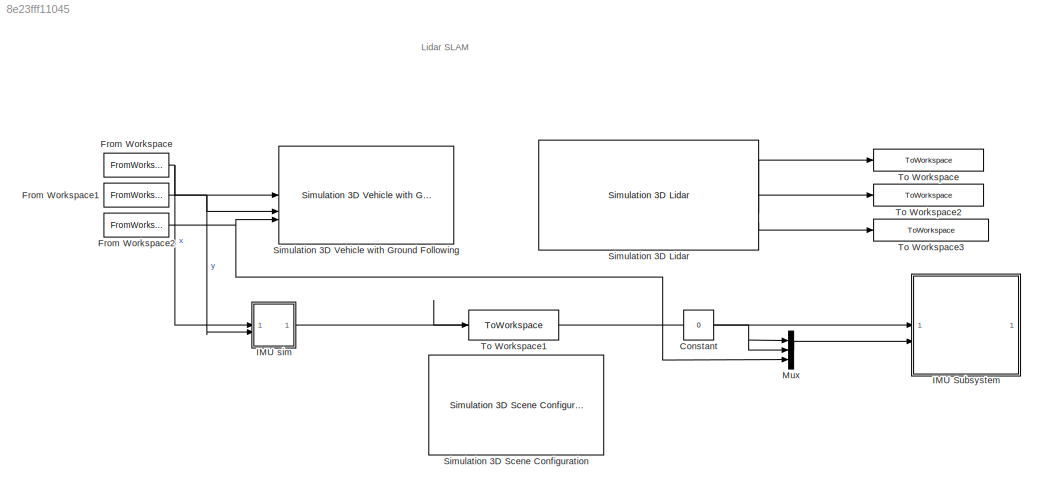
MODEL slx_8e23fff11045
KIND model
CONFIG AbsTol = auto
CONFIG EnableMultiTasking = off
CONFIG FixedStep = auto
CONFIG MaxStep = auto
CONFIG MinStep = auto
CONFIG RelTol = 1e-3
CONFIG SampleTimeConstraint = Unconstrained
CONFIG SolverName = VariableStepAuto
CONFIG StartTime = 0.0
CONFIG StopTime = 30
WORKSPACE source: mxarray member
WORKSPACE IMUloc = [0 0 0]
BLOCK [Constant] Constant
  Value = 0
BLOCK [FromWorkspace] From Workspace
  VariableName = refPosesX
BLOCK [FromWorkspace] From Workspace1
  VariableName = refPosesY
BLOCK [FromWorkspace] From Workspace2
  Interpolate = off
  OutputAfterFinalValue = Holding final value
  VariableName = refPosesT
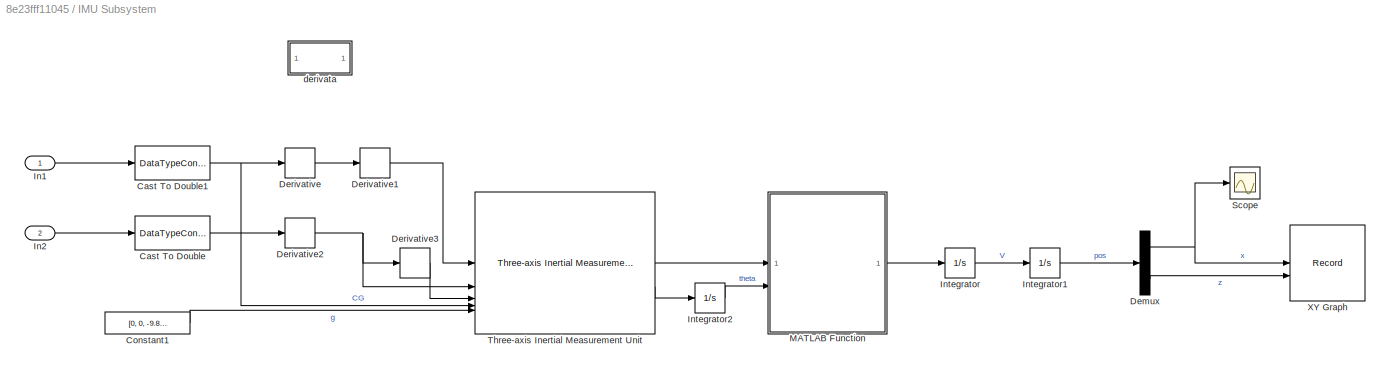
BLOCK [SubSystem] IMU Subsystem
  Commented = on
BLOCK [DataTypeConversion] IMU Subsystem/Cast To Double
  OutDataTypeStr = double
  RndMeth = Floor
  SaturateOnIntegerOverflow = off
BLOCK [DataTypeConversion] IMU Subsystem/Cast To Double1
  OutDataTypeStr = double
  RndMeth = Floor
  SaturateOnIntegerOverflow = off
BLOCK [Constant] IMU Subsystem/Constant1
  Value = [0, 0, -9.81]
BLOCK [Demux] IMU Subsystem/Demux
  Outputs = 3
BLOCK [Derivative] IMU Subsystem/Derivative
BLOCK [Derivative] IMU Subsystem/Derivative1
BLOCK [Derivative] IMU Subsystem/Derivative2
BLOCK [Derivative] IMU Subsystem/Derivative3
BLOCK [Inport] IMU Subsystem/In1
BLOCK [Inport] IMU Subsystem/In2
  Port = 2
BLOCK [Integrator] IMU Subsystem/Integrator
  InitialCondition = [0;0;0]
BLOCK [Integrator] IMU Subsystem/Integrator1
  InitialCondition = [0;0;0]
BLOCK [Integrator] IMU Subsystem/Integrator2
  InitialCondition = [0;0;0]
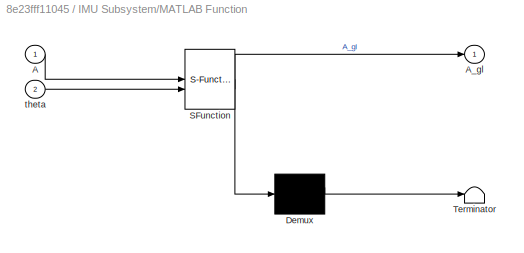
BLOCK [SubSystem] IMU Subsystem/MATLAB Function
  ErrorFcn = Stateflow.Translate.translate
  PermitHierarchicalResolution = ExplicitOnly
  SFBlockType = MATLAB Function
  TreatAsAtomicUnit = on
BLOCK [Demux] IMU Subsystem/MATLAB Function/ Demux 
  Outputs = 1
BLOCK [S-Function] IMU Subsystem/MATLAB Function/ SFunction 
  EnableBusSupport = on
  FunctionName = sf_sfun
  PortCounts = [2 2]
  SFcnIsStateOwnerBlock = off
  SFunctionDeploymentMode = off
  Tag = Stateflow S-Function 2
BLOCK [Terminator] IMU Subsystem/MATLAB Function/ Terminator 
BLOCK [Inport] IMU Subsystem/MATLAB Function/A
BLOCK [Outport] IMU Subsystem/MATLAB Function/A_gl
BLOCK [Inport] IMU Subsystem/MATLAB Function/theta
  Port = 2
BLOCK [Scope] IMU Subsystem/Scope
  Floating = off
  NumInputPorts = 1
  ScopeSpecificationString = Simulink.scopes.TimeScopeBlockCfg('CurrentConfiguration', extmgr.ConfigurationSet(extmgr.Configuration('Core','General UI',true),extmgr.Configuration('Core','Source UI',true),extmgr.Configuration('Sources','WiredSimulink',true),extmgr.Configuration('Visuals','Time Domain',true,'SerializedDisplays',{struct('MinYLimReal','-3424063083796663631872.00000','MaxYLimReal','399931623700754857984.00000','YL...<+1574ch>
BLOCK [Reference] IMU Subsystem/Three-axis Inertial Measurement Unit  REF=vehdynlibsens/Three-axis Inertial
Measurement Unit
  SourceBlock = vehdynlibsens/Three-axis Inertial\nMeasurement Unit
  SourceType = Three-axis Inertial Measurement Unit
BLOCK [Record] IMU Subsystem/XY Graph
  CompatibilityTag = XY
  FileSettingsInternal = {"entries":[{"content":{"excelSettings":{"content":{},"type":"Streamout.ExcelSettings"}},"type":"Streamout.FileSettingStorage","uuid":""}],"packageUris":["http:\/\/schema.mathworks.com\/mf0\/streamout_blocks\/R2020a"],"version":"1.0"}
  Layout = [1 1]
  SignalsInternal = {"entries":[{"content":{"signals":[{"content":{"blockPath":[],"dimensions":[1,1],"domain":"","lineColor":"#edb120","lineWidth":2,"plots":[ 1 ],"port":1,"sid":[""],"signalID":1,"signalName":"x"},"type":"RecordBlkView.Signal","uuid":""},{"content":{"blockPath":[],"dimensions":[1,1],"domain":"","lineColor":"#7e2f8e","lineWidth":2,"plots":[ 1 ],"port":2,"sid":[""],"signalID":2,"signalName":"z"},"type"...<+180ch>
  VisualizationBindings = {"xyplotplugin":{"info":[{"series":[{"bindingParametersList":[{"parameter":"X-Axis","signalID":1,"signalName":"x"},{"parameter":"Y-Axis","signalID":2,"signalName":"z"}],"seriesID":0}],"subplotID":1}]}}
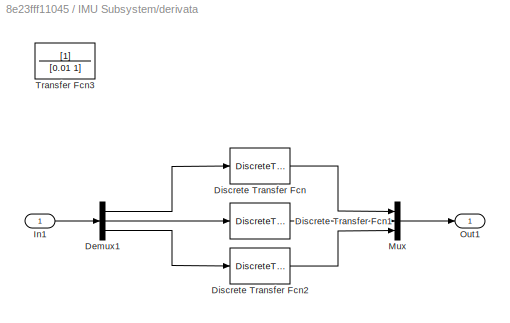
BLOCK [SubSystem] IMU Subsystem/derivata
BLOCK [Demux] IMU Subsystem/derivata/Demux1
  Outputs = 3
BLOCK [DiscreteTransferFcn] IMU Subsystem/derivata/Discrete Transfer Fcn
  Denominator = [1 0.01]
  InputPortMap = u0
  Numerator = [1 -1]
BLOCK [DiscreteTransferFcn] IMU Subsystem/derivata/Discrete Transfer Fcn1
  Denominator = [1 0.01]
  InputPortMap = u0
  Numerator = [1 -1]
BLOCK [DiscreteTransferFcn] IMU Subsystem/derivata/Discrete Transfer Fcn2
  Denominator = [1 0.01]
  InputPortMap = u0
  Numerator = [1 -1]
BLOCK [Inport] IMU Subsystem/derivata/In1
BLOCK [Mux] IMU Subsystem/derivata/Mux
  DisplayOption = bar
  Inputs = 3
BLOCK [Outport] IMU Subsystem/derivata/Out1
BLOCK [TransferFcn] IMU Subsystem/derivata/Transfer Fcn3
  Denominator = [0.01 1]
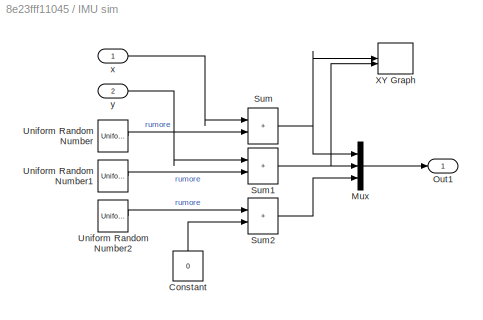
BLOCK [SubSystem] IMU sim
BLOCK [Constant] IMU sim/Constant
  NameLocation = right
  Value = 0
BLOCK [Mux] IMU sim/Mux
  DisplayOption = bar
  Inputs = 3
BLOCK [Outport] IMU sim/Out1
BLOCK [Sum] IMU sim/Sum
  IconShape = rectangular
  Inputs = |++
BLOCK [Sum] IMU sim/Sum1
  IconShape = rectangular
  Inputs = |++
BLOCK [Sum] IMU sim/Sum2
  IconShape = rectangular
  Inputs = |++
BLOCK [UniformRandomNumber] IMU sim/Uniform Random Number
  Maximum = 0.1
  Minimum = -0.1
  SampleTime = 0.1
BLOCK [UniformRandomNumber] IMU sim/Uniform Random Number1
  Maximum = 0.1
  Minimum = -0.1
  SampleTime = 0.1
BLOCK [UniformRandomNumber] IMU sim/Uniform Random Number2
  Maximum = 0.1
  Minimum = -0.1
  SampleTime = 0.1
BLOCK [Record] IMU sim/XY Graph
  CompatibilityTag = XY
  FileSettingsInternal = {"entries":[{"content":{"excelSettings":{"content":{},"type":"Streamout.ExcelSettings"}},"type":"Streamout.FileSettingStorage","uuid":""}],"packageUris":["http:\/\/schema.mathworks.com\/mf0\/streamout_blocks\/R2020a"],"version":"1.0"}
  Layout = [1 1]
  SignalsInternal = {"entries":[{"content":{"signals":[{"content":{"blockPath":[],"dimensions":[1],"domain":"","lineColor":"#a2142f","plots":[ 1 ],"port":1,"sid":[""],"signalID":1,"signalName":"Sum"},"type":"RecordBlkView.Signal","uuid":""},{"content":{"blockPath":[],"dimensions":[1],"domain":"","lineColor":"#139fff","plots":[ 1 ],"port":2,"sid":[""],"signalID":2,"signalName":"Sum1"},"type":"RecordBlkView.Signal","uu...<+153ch>
  VisualizationBindings = {"xyplotplugin":{"info":[{"series":[{"bindingParametersList":[{"parameter":"X-Axis","signalID":1,"signalName":"Sum"},{"parameter":"Y-Axis","signalID":2,"signalName":"Sum1"}],"seriesID":0}],"subplotID":1}]}}
BLOCK [Inport] IMU sim/x
BLOCK [Inport] IMU sim/y
  Port = 2
BLOCK [Mux] Mux
  DisplayOption = bar
  Inputs = 3
BLOCK [Reference] Simulation 3D Lidar  REF=sim3dphyssensorlib/Simulation 3D Lidar
  LibrarySourceBlock = sl3dlib/Simulation 3D/Sensors/Simulation 3D Lidar
  Priority = 1
  SourceBlock = sim3dphyssensorlib/Simulation 3D Lidar
  SourceType = Simulation 3D Lidar
BLOCK [Reference] Simulation 3D Scene Configuration  REF=sim3dlib/Simulation 3D Scene Configuration
  LibrarySourceBlock = drivingsim3d/Simulation 3D Scene Configuration
  Priority = 0
  SourceBlock = sim3dlib/Simulation 3D Scene Configuration
  SourceType = Simulation 3D Scene Configuration
BLOCK [Reference] Simulation 3D Vehicle with Ground Following  REF=sim3dautolib/Simulation 3D Vehicle with Ground Following
  LibrarySourceBlock = drivingsim3d/Simulation 3D Vehicle with Ground Following
  Priority = -1
  SourceBlock = sim3dautolib/Simulation 3D Vehicle with Ground Following
  SourceType = Simulation 3D Vehicle with Ground Following
BLOCK [ToWorkspace] To Workspace
  FixptAsFi = on
  MaxDataPoints = inf
  SampleTime = 0.1
  SaveFormat = Structure With Time
  VariableName = lidarScans
BLOCK [ToWorkspace] To Workspace1
  FixptAsFi = on
  MaxDataPoints = inf
  SampleTime = -1
  SaveFormat = Timeseries
  VariableName = IMUsens
BLOCK [ToWorkspace] To Workspace2
  FixptAsFi = on
  MaxDataPoints = inf
  SampleTime = 0.1
  SaveFormat = Structure With Time
  VariableName = lidarLocation
BLOCK [ToWorkspace] To Workspace3
  FixptAsFi = on
  MaxDataPoints = inf
  SampleTime = 0.1
  SaveFormat = Structure With Time
  VariableName = lidarOrientation
ANNOTATION (root): Lidar SLAM
NET Constant:1 -> Mux:1, Mux:2
NET From Workspace1:1 -> IMU sim:2, Simulation 3D Vehicle with Ground Following:2
NET From Workspace2:1 -> Mux:3, Simulation 3D Vehicle with Ground Following:3
NET From Workspace:1 -> IMU sim:1, Simulation 3D Vehicle with Ground Following:1
NET IMU Subsystem/Cast To Double1:1 -> IMU Subsystem/Derivative:1, IMU Subsystem/Three-axis Inertial Measurement Unit:4
LINE IMU Subsystem/Cast To Double:1 -> IMU Subsystem/Derivative2:1
LINE IMU Subsystem/Constant1:1 -> IMU Subsystem/Three-axis Inertial Measurement Unit:5
NET IMU Subsystem/Demux:1 -> IMU Subsystem/Scope:1, IMU Subsystem/XY Graph:1
LINE IMU Subsystem/Demux:3 -> IMU Subsystem/XY Graph:2
LINE IMU Subsystem/Derivative1:1 -> IMU Subsystem/Three-axis Inertial Measurement Unit:1
NET IMU Subsystem/Derivative2:1 -> IMU Subsystem/Derivative3:1, IMU Subsystem/Three-axis Inertial Measurement Unit:2
LINE IMU Subsystem/Derivative3:1 -> IMU Subsystem/Three-axis Inertial Measurement Unit:3
LINE IMU Subsystem/Derivative:1 -> IMU Subsystem/Derivative1:1
LINE IMU Subsystem/In1:1 -> IMU Subsystem/Cast To Double1:1
LINE IMU Subsystem/In2:1 -> IMU Subsystem/Cast To Double:1
LINE IMU Subsystem/Integrator1:1 -> IMU Subsystem/Demux:1
LINE IMU Subsystem/Integrator2:1 -> IMU Subsystem/MATLAB Function:2
LINE IMU Subsystem/Integrator:1 -> IMU Subsystem/Integrator1:1
LINE IMU Subsystem/MATLAB Function:1 -> IMU Subsystem/Integrator:1
LINE IMU Subsystem/Three-axis Inertial Measurement Unit:1 -> IMU Subsystem/MATLAB Function:1
LINE IMU Subsystem/Three-axis Inertial Measurement Unit:2 -> IMU Subsystem/Integrator2:1
LINE IMU Subsystem/derivata/Demux1:1 -> IMU Subsystem/derivata/Discrete Transfer Fcn:1
LINE IMU Subsystem/derivata/Demux1:2 -> IMU Subsystem/derivata/Discrete Transfer Fcn1:1
LINE IMU Subsystem/derivata/Demux1:3 -> IMU Subsystem/derivata/Discrete Transfer Fcn2:1
LINE IMU Subsystem/derivata/Discrete Transfer Fcn1:1 -> IMU Subsystem/derivata/Mux:2
LINE IMU Subsystem/derivata/Discrete Transfer Fcn2:1 -> IMU Subsystem/derivata/Mux:3
LINE IMU Subsystem/derivata/Discrete Transfer Fcn:1 -> IMU Subsystem/derivata/Mux:1
LINE IMU Subsystem/derivata/In1:1 -> IMU Subsystem/derivata/Demux1:1
LINE IMU Subsystem/derivata/Mux:1 -> IMU Subsystem/derivata/Out1:1
LINE IMU sim/Constant:1 -> IMU sim/Sum2:2
LINE IMU sim/Mux:1 -> IMU sim/Out1:1
NET IMU sim/Sum1:1 -> IMU sim/Mux:2, IMU sim/XY Graph:2
LINE IMU sim/Sum2:1 -> IMU sim/Mux:3
NET IMU sim/Sum:1 -> IMU sim/Mux:1, IMU sim/XY Graph:1
LINE IMU sim/Uniform Random Number1:1 -> IMU sim/Sum1:2
LINE IMU sim/Uniform Random Number2:1 -> IMU sim/Sum2:1
LINE IMU sim/Uniform Random Number:1 -> IMU sim/Sum:2
LINE IMU sim/x:1 -> IMU sim/Sum:1
LINE IMU sim/y:1 -> IMU sim/Sum1:1
NET IMU sim:1 -> IMU Subsystem:1, To Workspace1:1
LINE Mux:1 -> IMU Subsystem:2
LINE Simulation 3D Lidar:1 -> To Workspace:1
LINE Simulation 3D Lidar:2 -> To Workspace2:1
LINE Simulation 3D Lidar:3 -> To Workspace3:1
note: NET lines group one-source signal fan-out (src -> all destinations, sorted); 1:1 wires keep LINE
CHART IMU Subsystem/MATLAB Function states=1 transitions=1
  STATE_LABEL 'eML_blk_kernel()'
  STATE_LABEL 'SCRIPT:\nfunction A_gl = conv2glob(A, theta)\n\n    R_roll = [1 0 0;\n        0 cos(theta(1)) -sin(theta(1))\n        0 sin(theta(1)) cos(theta(1))];\n    \n    R_pitch = [cos(theta(2)) 0 sin(theta(2));\n        0 1 0;\n        -sin(theta(2)) 0 cos(theta(2))];\n    \n    R_yaw = [cos(theta(3)) -sin(theta(3)) 0\n        sin(theta(3)) cos(theta(3)) 0\n        0 0 1];\n\n    R_tot = R_yaw*R_pitch*R_roll;\n    %R_tot...<+51ch>'
CHART  states=0 transitions=0
